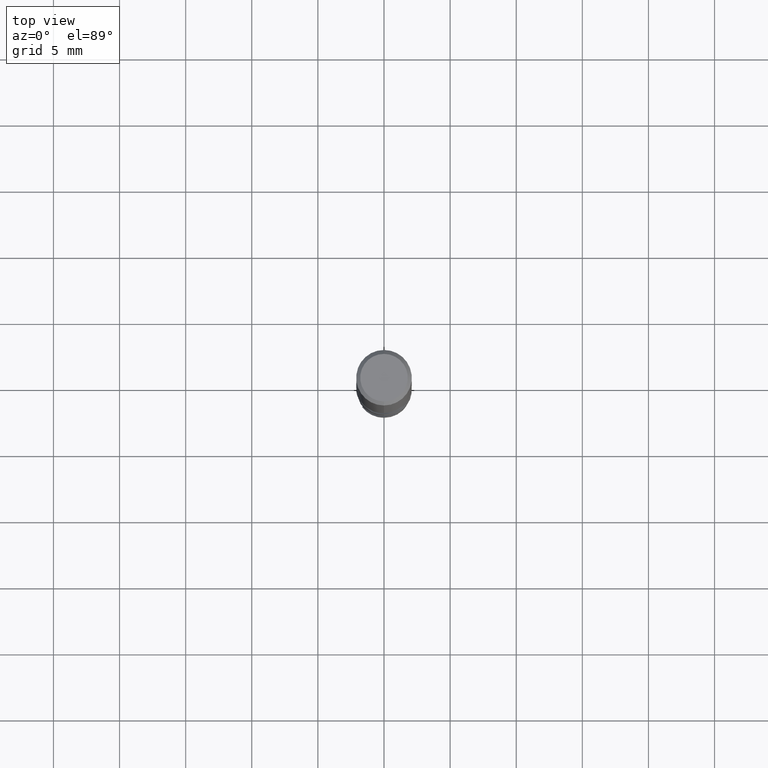
[diagram: clean part render]
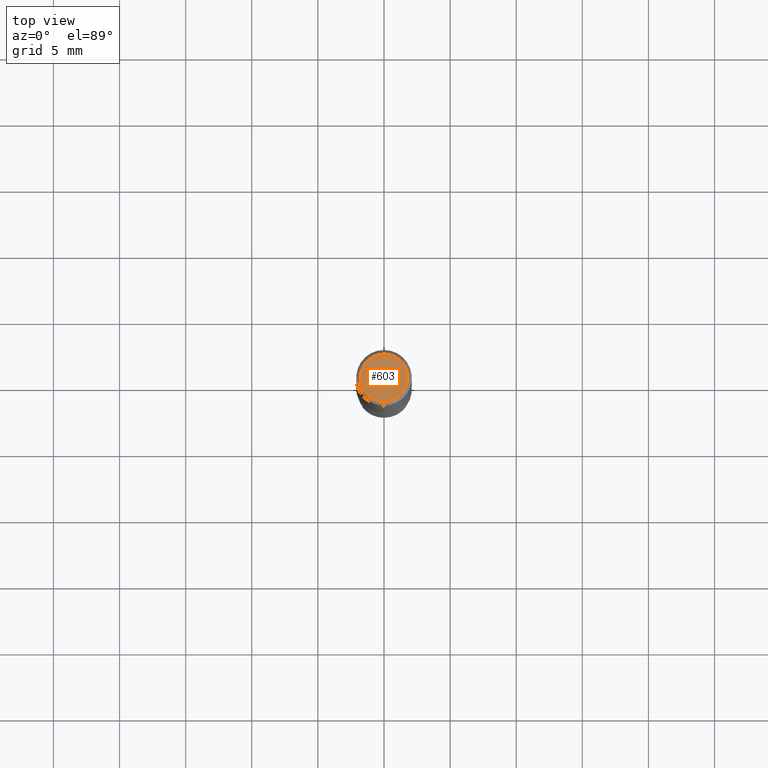
[diagram: same view with one face highlighted and labeled with its STEP entity id]
A machine part, top view. The second image highlights one B-rep face of the part: STEP entity #603.
In plain terms, the highlighted planar face has unit normal (-0, 0, 1).
Its self-contained STEP definition (entity closure, byte-faithful):
#383=EDGE_CURVE('',#459,#489,#892,.T.);
#459=VERTEX_POINT('',#972);
#489=VERTEX_POINT('',#1004);
#603=ADVANCED_FACE('',(#1124),#1125,.T.);
#669=EDGE_CURVE('',#489,#459,#1198,.T.);
#892=CIRCLE('',#3574,1.8);
#972=CARTESIAN_POINT('',(2.20429143688028E-016,-1.8,0.0));
#1004=CARTESIAN_POINT('',(0.0,1.8,0.0));
#1124=FACE_OUTER_BOUND('',#5135,.T.);
#1125=PLANE('',#5136);
#1198=CIRCLE('',#6360,1.8);
#3574=AXIS2_PLACEMENT_3D('',#7022,#7023,#7024);
#5135=EDGE_LOOP('',(#7204,#7205));
#5136=AXIS2_PLACEMENT_3D('',#7206,#7207,#7208);
#6360=AXIS2_PLACEMENT_3D('',#7296,#7297,#7298);
#7022=CARTESIAN_POINT('',(0.0,0.0,0.0));
#7023=DIRECTION('',(0.0,0.0,-1.0));
#7024=DIRECTION('',(0.0,1.0,0.0));
#7204=ORIENTED_EDGE('',*,*,#669,.F.);
#7205=ORIENTED_EDGE('',*,*,#383,.F.);
#7206=CARTESIAN_POINT('',(0.0,0.9,0.0));
#7207=DIRECTION('',(-0.0,0.0,1.0));
#7208=DIRECTION('',(0.0,-1.0,0.0));
#7296=CARTESIAN_POINT('',(0.0,0.0,0.0));
#7297=DIRECTION('',(0.0,0.0,-1.0));
#7298=DIRECTION('',(0.0,1.0,0.0));